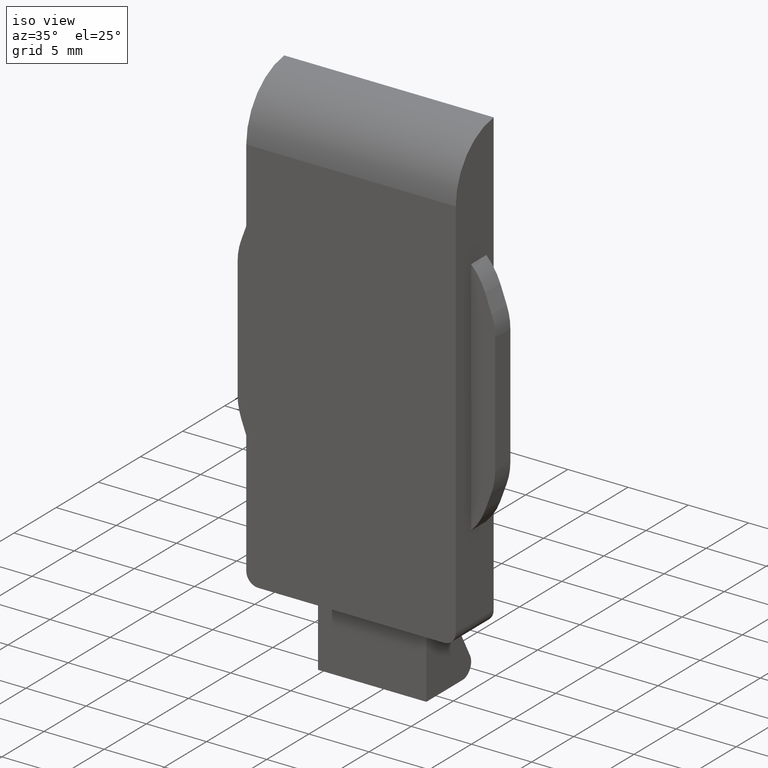
[diagram: clean part render]
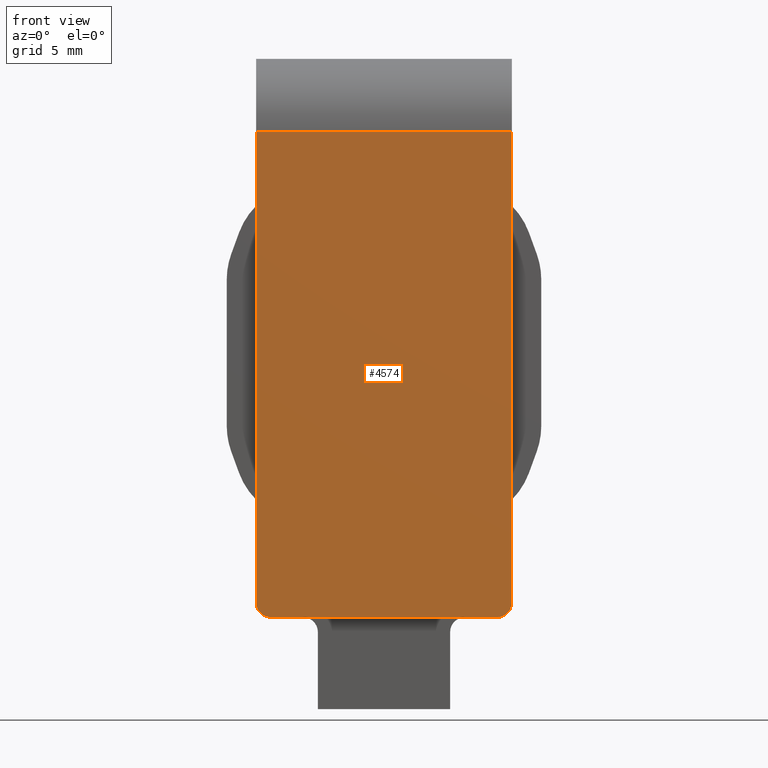
[diagram: tour spotlight — one face highlighted and labeled with its STEP entity id]
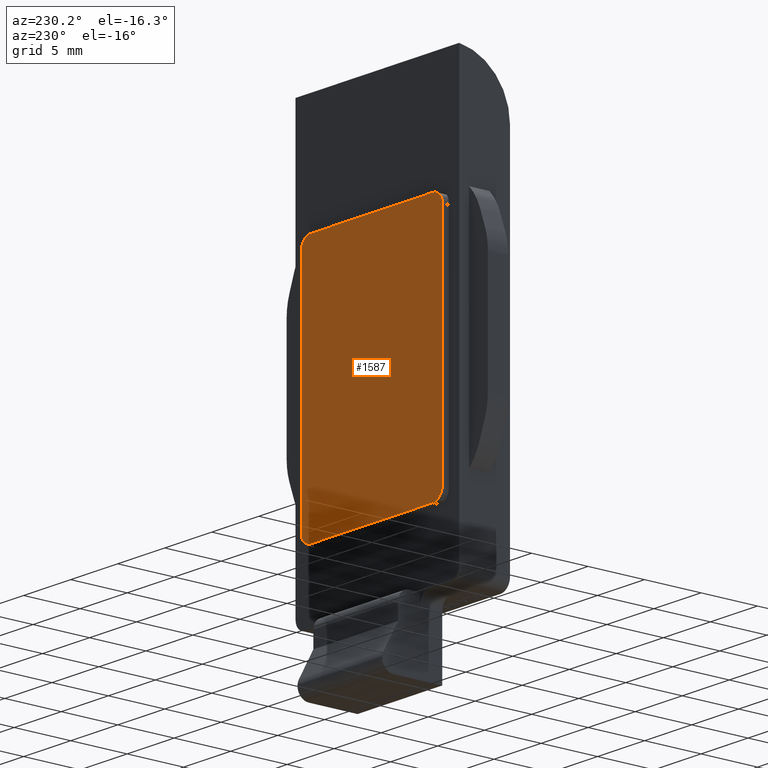
[diagram: tour spotlight — one face highlighted and labeled with its STEP entity id]
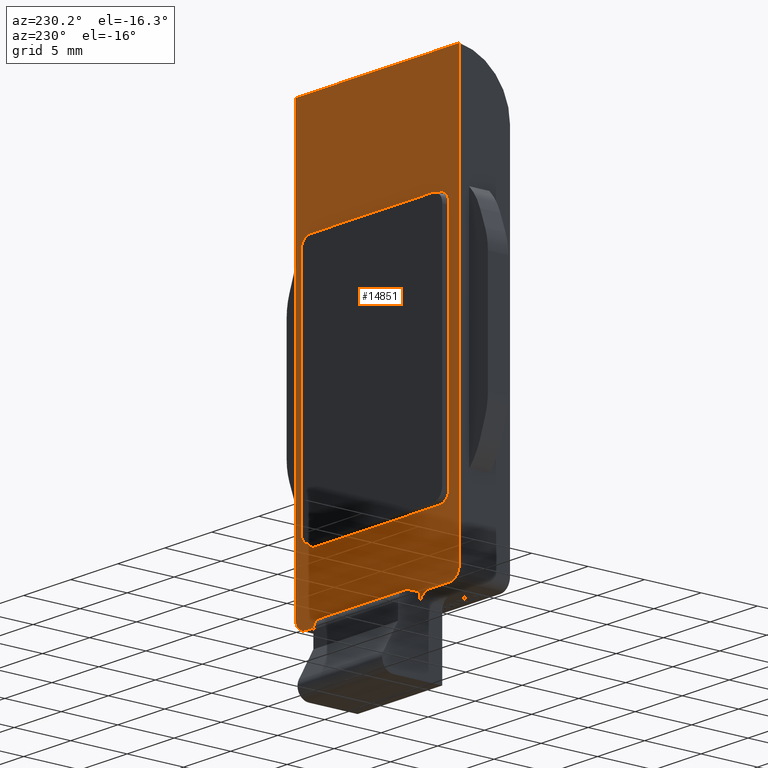
[diagram: tour spotlight — one face highlighted and labeled with its STEP entity id]
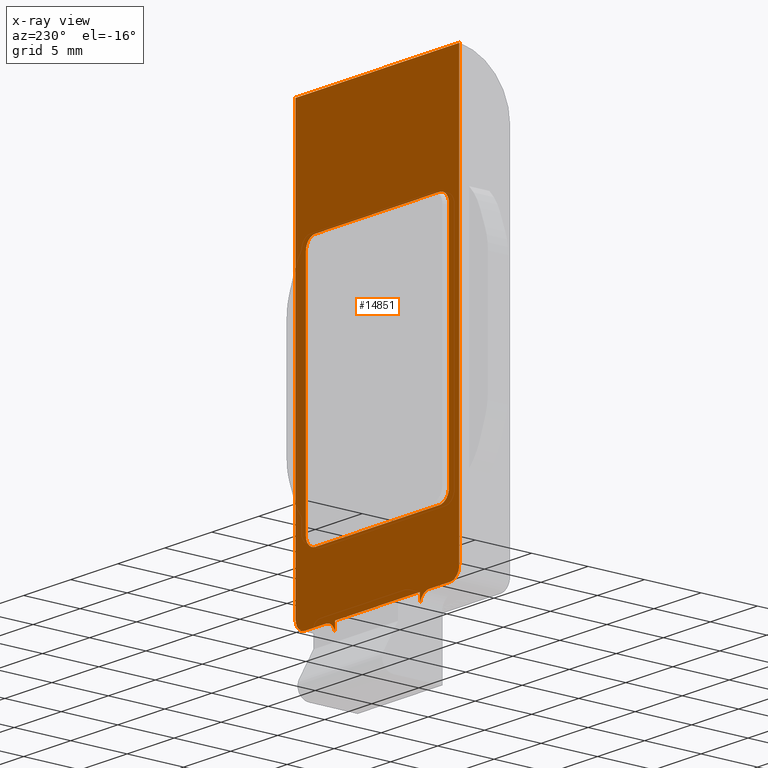
[diagram: x-ray of the same camera — body ghosted, this tour face saturated]
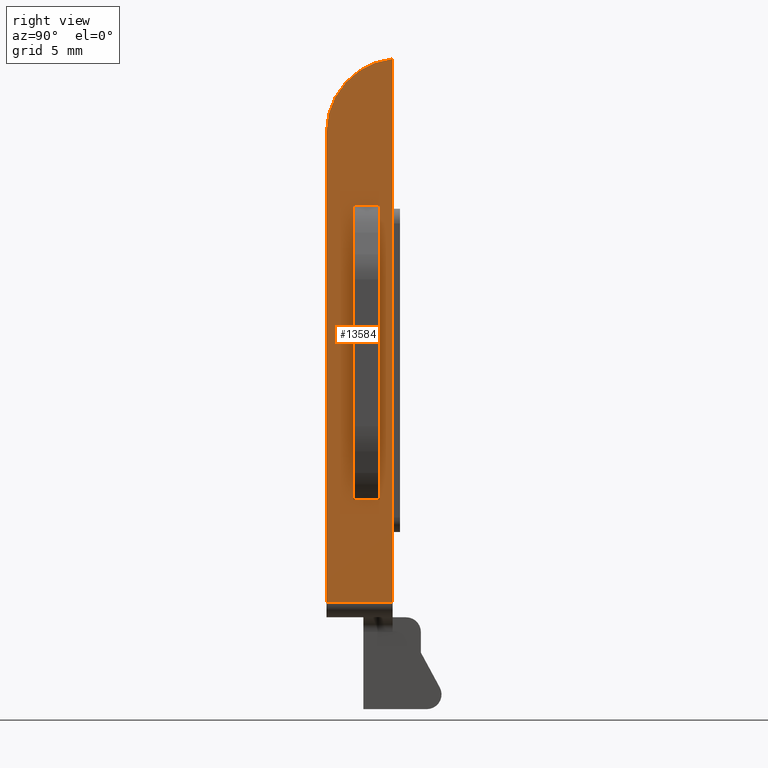
[diagram: tour spotlight — one face highlighted and labeled with its STEP entity id]
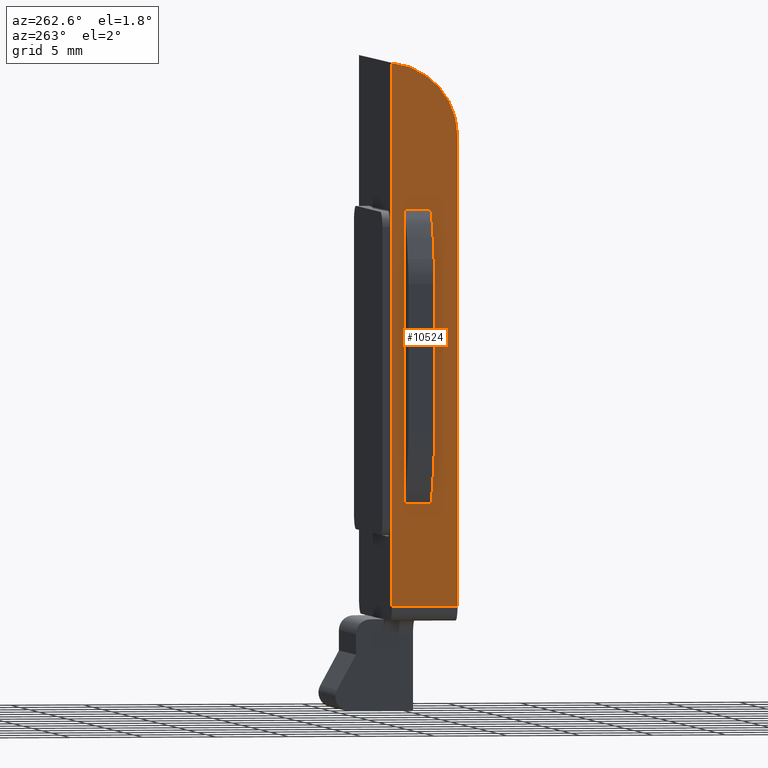
[diagram: tour spotlight — one face highlighted and labeled with its STEP entity id]
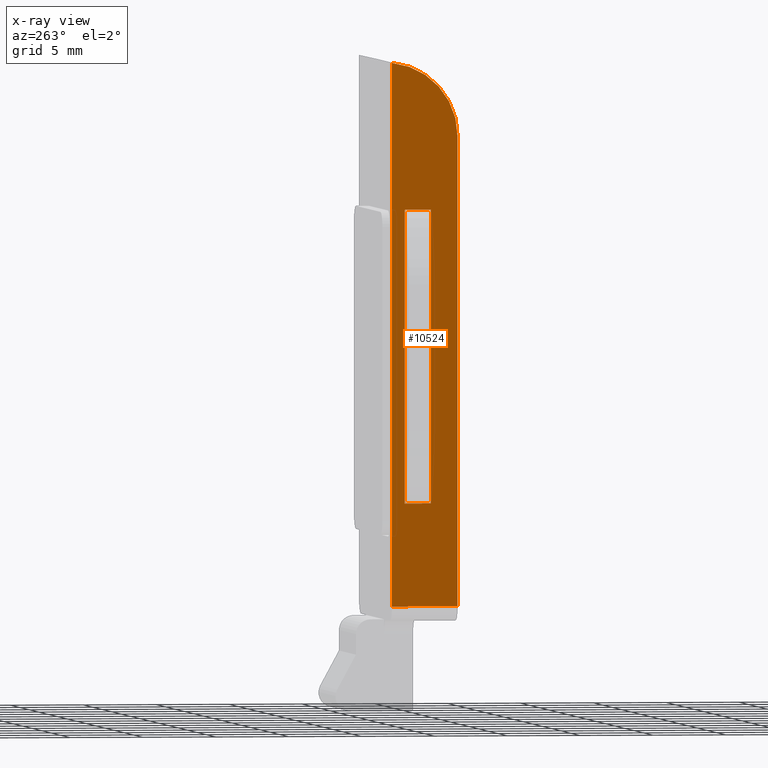
[diagram: x-ray of the same camera — body ghosted, this tour face saturated]
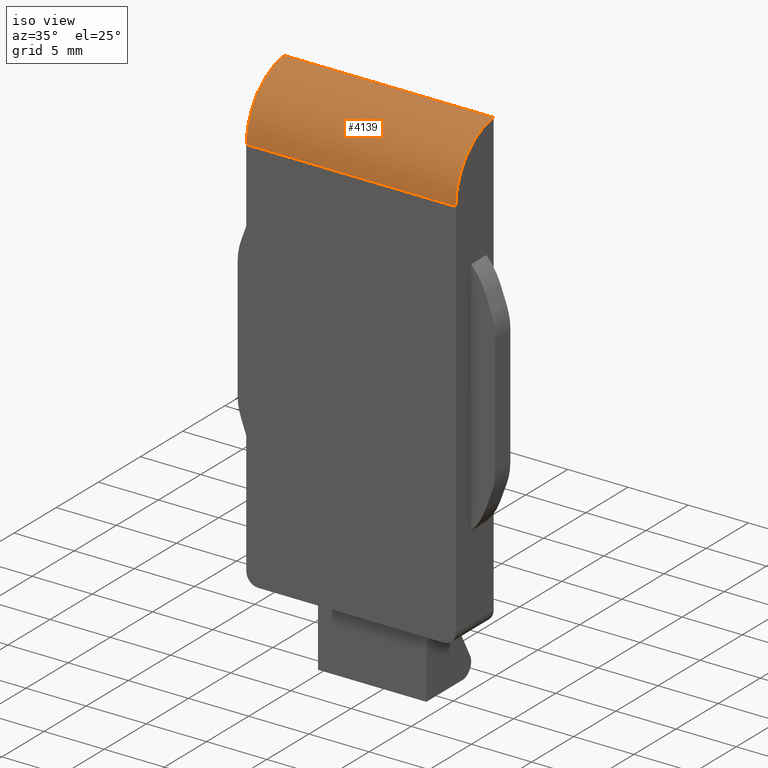
[diagram: tour spotlight — one face highlighted and labeled with its STEP entity id]
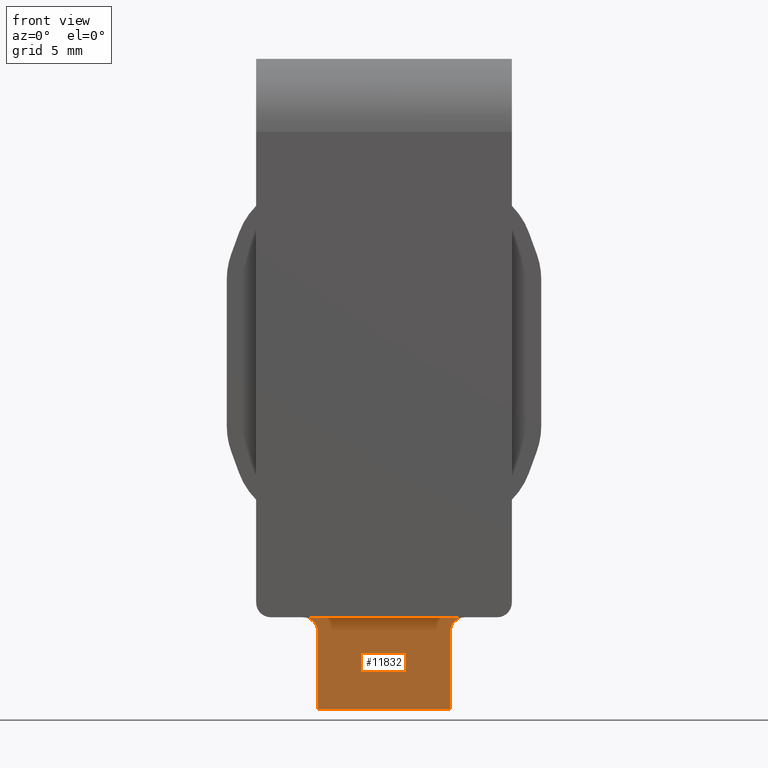
[diagram: tour spotlight — one face highlighted and labeled with its STEP entity id]
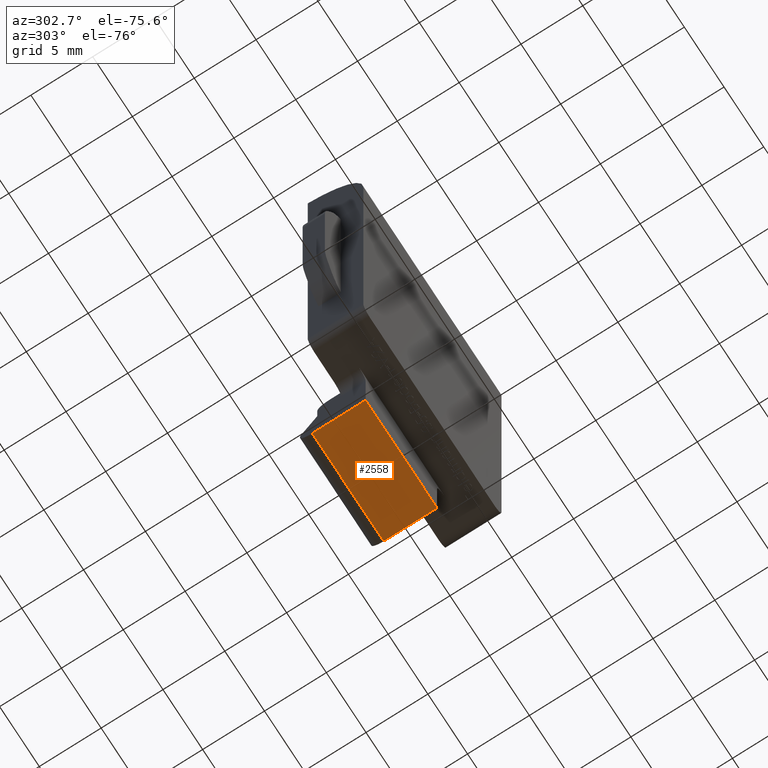
[diagram: tour spotlight — one face highlighted and labeled with its STEP entity id]
A machine part: a face-by-face anatomy tour. The part has 325 B-rep faces; the first image is the clean iso view, then the 8 largest visible faces are spotlighted one at a time (largest first), each with its STEP entity span.

Face 1 — front view, entity #4574. In plain terms, the highlighted planar face has unit normal (0, 1, 0).
Definition (entity closure, byte-faithful):
#469 = CARTESIAN_POINT ( 'NONE',  ( 8.699999999999999289, 0.000000000000000000, 0.000000000000000000 ) ) ;
#782 = CARTESIAN_POINT ( 'NONE',  ( 8.699999999999999289, 0.000000000000000000, 0.000000000000000000 ) ) ;
#944 = EDGE_CURVE ( 'NONE', #11452, #1312, #4113, .T. ) ;
#1054 = VECTOR ( 'NONE', #5608, 1000.000000000000000 ) ;
#1312 = VERTEX_POINT ( 'NONE', #6668 ) ;
#2035 = DIRECTION ( 'NONE',  ( 0.000000000000000000, -1.141265444721583757E-16, 1.000000000000000000 ) ) ;
#2095 = DIRECTION ( 'NONE',  ( -0.000000000000000000, 1.000000000000000000, 1.141265444721583757E-16 ) ) ;
#2259 = VERTEX_POINT ( 'NONE', #14165 ) ;
#2557 = CARTESIAN_POINT ( 'NONE',  ( 8.699999999999999289, 0.000000000000000000, 0.000000000000000000 ) ) ;
#2985 = ORIENTED_EDGE ( 'NONE', *, *, #5309, .T. ) ;
#2991 = VECTOR ( 'NONE', #8082, 1000.000000000000000 ) ;
#3068 = VECTOR ( 'NONE', #11401, 1000.000000000000000 ) ;
#3519 = CARTESIAN_POINT ( 'NONE',  ( 8.699999999999999289, -3.769036299991080429E-15, 33.02506281446689940 ) ) ;
#3775 = CIRCLE ( 'NONE', #15119, 1.000000000000000000 ) ;
#4015 = ORIENTED_EDGE ( 'NONE', *, *, #8146, .F. ) ;
#4113 = CIRCLE ( 'NONE', #11588, 1.000000000000000000 ) ;
#4268 = LINE ( 'NONE', #2557, #3068 ) ;
#4411 = VECTOR ( 'NONE', #10234, 1000.000000000000000 ) ;
#4413 = LINE ( 'NONE', #12801, #1054 ) ;
#4574 = ADVANCED_FACE ( 'NONE', ( #6003 ), #13251, .F. ) ;
#5309 = EDGE_CURVE ( 'NONE', #7398, #13173, #6786, .T. ) ;
#5366 = AXIS2_PLACEMENT_3D ( 'NONE', #782, #2095, #2035 ) ;
#5608 = DIRECTION ( 'NONE',  ( -0.000000000000000000, 1.141265444721583757E-16, -1.000000000000000000 ) ) ;
#5907 = CARTESIAN_POINT ( 'NONE',  ( -8.699999999999999289, -1.141265444721583757E-16, 1.000000000000000000 ) ) ;
#6003 = FACE_OUTER_BOUND ( 'NONE', #14239, .T. ) ;
#6466 = EDGE_CURVE ( 'NONE', #13173, #11452, #4413, .T. ) ;
#6668 = CARTESIAN_POINT ( 'NONE',  ( -7.699999999999998401, 0.000000000000000000, 0.000000000000000000 ) ) ;
#6786 = LINE ( 'NONE', #3519, #4411 ) ;
#6958 = LINE ( 'NONE', #469, #2991 ) ;
#6996 = DIRECTION ( 'NONE',  ( 0.000000000000000000, -1.000000000000000000, -1.141265444721583757E-16 ) ) ;
#7398 = VERTEX_POINT ( 'NONE', #13261 ) ;
#7535 = ORIENTED_EDGE ( 'NONE', *, *, #6466, .T. ) ;
#8082 = DIRECTION ( 'NONE',  ( -1.000000000000000000, -0.000000000000000000, -0.000000000000000000 ) ) ;
#8146 = EDGE_CURVE ( 'NONE', #2259, #1312, #6958, .T. ) ;
#8859 = ORIENTED_EDGE ( 'NONE', *, *, #944, .T. ) ;
#8918 = EDGE_CURVE ( 'NONE', #2259, #14095, #3775, .T. ) ;
#9051 = DIRECTION ( 'NONE',  ( 0.000000000000000000, -1.141265444721583757E-16, 1.000000000000000000 ) ) ;
#9364 = DIRECTION ( 'NONE',  ( 0.000000000000000000, -1.141265444721583757E-16, 1.000000000000000000 ) ) ;
#10234 = DIRECTION ( 'NONE',  ( -1.000000000000000000, 0.000000000000000000, 0.000000000000000000 ) ) ;
#10971 = ORIENTED_EDGE ( 'NONE', *, *, #14042, .F. ) ;
#11401 = DIRECTION ( 'NONE',  ( -0.000000000000000000, 1.141265444721583757E-16, -1.000000000000000000 ) ) ;
#11452 = VERTEX_POINT ( 'NONE', #5907 ) ;
#11543 = CARTESIAN_POINT ( 'NONE',  ( -7.699999999999998401, -1.141265444721583757E-16, 1.000000000000000000 ) ) ;
#11588 = AXIS2_PLACEMENT_3D ( 'NONE', #11543, #12820, #9051 ) ;
#11629 = CARTESIAN_POINT ( 'NONE',  ( 8.699999999999999289, -1.141265444721583757E-16, 1.000000000000000000 ) ) ;
#12801 = CARTESIAN_POINT ( 'NONE',  ( -8.699999999999999289, 0.000000000000000000, 0.000000000000000000 ) ) ;
#12820 = DIRECTION ( 'NONE',  ( 0.000000000000000000, -1.000000000000000000, -1.141265444721583757E-16 ) ) ;
#13173 = VERTEX_POINT ( 'NONE', #15232 ) ;
#13251 = PLANE ( 'NONE',  #5366 ) ;
#13261 = CARTESIAN_POINT ( 'NONE',  ( 8.699999999999999289, -3.469446951953614189E-15, 33.02506281446689940 ) ) ;
#13338 = CARTESIAN_POINT ( 'NONE',  ( 7.699999999999999289, -1.141265444721583757E-16, 1.000000000000000000 ) ) ;
#14042 = EDGE_CURVE ( 'NONE', #7398, #14095, #4268, .T. ) ;
#14095 = VERTEX_POINT ( 'NONE', #11629 ) ;
#14165 = CARTESIAN_POINT ( 'NONE',  ( 7.699999999999999289, 0.000000000000000000, 0.000000000000000000 ) ) ;
#14239 = EDGE_LOOP ( 'NONE', ( #10971, #2985, #7535, #8859, #4015, #16337 ) ) ;
#15119 = AXIS2_PLACEMENT_3D ( 'NONE', #13338, #6996, #9364 ) ;
#15232 = CARTESIAN_POINT ( 'NONE',  ( -8.699999999999999289, -3.469446951953614189E-15, 33.02506281446689940 ) ) ;
#16337 = ORIENTED_EDGE ( 'NONE', *, *, #8918, .T. ) ;

Face 2 — auxiliary view, entity #1587. In plain terms, the highlighted planar face has unit normal (0, 1, 0).
Definition (entity closure, byte-faithful):
#19 = ORIENTED_EDGE ( 'NONE', *, *, #1925, .T. ) ;
#36 = VECTOR ( 'NONE', #11539, 1000.000000000000000 ) ;
#55 = DIRECTION ( 'NONE',  ( 0.000000000000000000, 1.000000000000000000, 0.000000000000000000 ) ) ;
#509 = CIRCLE ( 'NONE', #3511, 1.000000000000000888 ) ;
#870 = VECTOR ( 'NONE', #15500, 1000.000000000000000 ) ;
#914 = EDGE_LOOP ( 'NONE', ( #4804, #19, #12055, #7626, #9732, #7924, #1076, #14065 ) ) ;
#1076 = ORIENTED_EDGE ( 'NONE', *, *, #9006, .T. ) ;
#1279 = AXIS2_PLACEMENT_3D ( 'NONE', #5030, #6462, #1282 ) ;
#1282 = DIRECTION ( 'NONE',  ( 0.000000000000000000, 0.000000000000000000, 1.000000000000000000 ) ) ;
#1587 = ADVANCED_FACE ( 'NONE', ( #2112 ), #13980, .T. ) ;
#1639 = AXIS2_PLACEMENT_3D ( 'NONE', #3992, #2713, #5265 ) ;
#1653 = CARTESIAN_POINT ( 'NONE',  ( -6.499999999999997335, 1.000000000000000000, 11.00000000000000533 ) ) ;
#1925 = EDGE_CURVE ( 'NONE', #8725, #6084, #9420, .T. ) ;
#2112 = FACE_OUTER_BOUND ( 'NONE', #914, .T. ) ;
#2213 = CARTESIAN_POINT ( 'NONE',  ( 6.499999999999998224, 1.000000000000000000, -10.99999999999999467 ) ) ;
#2349 = CARTESIAN_POINT ( 'NONE',  ( 6.500000000000001776, 1.000000000000000000, -9.999999999999994671 ) ) ;
#2713 = DIRECTION ( 'NONE',  ( 0.000000000000000000, 1.000000000000000000, 0.000000000000000000 ) ) ;
#3511 = AXIS2_PLACEMENT_3D ( 'NONE', #2349, #13875, #10133 ) ;
#3764 = CARTESIAN_POINT ( 'NONE',  ( -6.499999999999997335, 1.000000000000000000, 10.00000000000000533 ) ) ;
#3816 = LINE ( 'NONE', #11577, #870 ) ;
#3954 = EDGE_CURVE ( 'NONE', #6084, #14330, #5421, .T. ) ;
#3973 = DIRECTION ( 'NONE',  ( 1.000000000000000000, 0.000000000000000000, 0.000000000000000000 ) ) ;
#3992 = CARTESIAN_POINT ( 'NONE',  ( 0.000000000000000000, 1.000000000000000000, 0.000000000000000000 ) ) ;
#4367 = LINE ( 'NONE', #10072, #10285 ) ;
#4804 = ORIENTED_EDGE ( 'NONE', *, *, #5088, .T. ) ;
#4984 = DIRECTION ( 'NONE',  ( -1.000000000000000000, -0.000000000000000000, -0.000000000000000000 ) ) ;
#5030 = CARTESIAN_POINT ( 'NONE',  ( 6.500000000000004441, 1.000000000000000000, 10.00000000000000355 ) ) ;
#5088 = EDGE_CURVE ( 'NONE', #5220, #8725, #3816, .T. ) ;
#5148 = DIRECTION ( 'NONE',  ( 0.000000000000000000, 1.000000000000000000, 0.000000000000000000 ) ) ;
#5220 = VERTEX_POINT ( 'NONE', #14673 ) ;
#5265 = DIRECTION ( 'NONE',  ( 0.000000000000000000, -0.000000000000000000, 1.000000000000000000 ) ) ;
#5415 = CARTESIAN_POINT ( 'NONE',  ( -7.499999999999997335, 1.000000000000000000, 11.00000000000000533 ) ) ;
#5421 = LINE ( 'NONE', #5415, #11344 ) ;
#5707 = VERTEX_POINT ( 'NONE', #14929 ) ;
#5798 = VERTEX_POINT ( 'NONE', #2213 ) ;
#5913 = VERTEX_POINT ( 'NONE', #13904 ) ;
#5943 = EDGE_CURVE ( 'NONE', #5707, #11967, #9938, .T. ) ;
#6084 = VERTEX_POINT ( 'NONE', #1653 ) ;
#6462 = DIRECTION ( 'NONE',  ( 0.000000000000000000, 1.000000000000000000, 0.000000000000000000 ) ) ;
#6726 = AXIS2_PLACEMENT_3D ( 'NONE', #3764, #55, #8885 ) ;
#7474 = CARTESIAN_POINT ( 'NONE',  ( 7.500000000000000888, 1.000000000000000000, -10.99999999999999467 ) ) ;
#7626 = ORIENTED_EDGE ( 'NONE', *, *, #12118, .T. ) ;
#7924 = ORIENTED_EDGE ( 'NONE', *, *, #14016, .T. ) ;
#8725 = VERTEX_POINT ( 'NONE', #10880 ) ;
#8885 = DIRECTION ( 'NONE',  ( 0.000000000000000000, 0.000000000000000000, 1.000000000000000000 ) ) ;
#9006 = EDGE_CURVE ( 'NONE', #5798, #5913, #4367, .T. ) ;
#9044 = CIRCLE ( 'NONE', #1279, 0.9999999999999991118 ) ;
#9420 = CIRCLE ( 'NONE', #6726, 1.000000000000000888 ) ;
#9732 = ORIENTED_EDGE ( 'NONE', *, *, #5943, .T. ) ;
#9938 = LINE ( 'NONE', #7474, #36 ) ;
#10072 = CARTESIAN_POINT ( 'NONE',  ( -7.500000000000000888, 1.000000000000000000, -10.99999999999999467 ) ) ;
#10133 = DIRECTION ( 'NONE',  ( 0.000000000000000000, 0.000000000000000000, 1.000000000000000000 ) ) ;
#10285 = VECTOR ( 'NONE', #4984, 1000.000000000000000 ) ;
#10880 = CARTESIAN_POINT ( 'NONE',  ( -7.499999999999997335, 1.000000000000000000, 10.00000000000000355 ) ) ;
#11344 = VECTOR ( 'NONE', #3973, 1000.000000000000000 ) ;
#11539 = DIRECTION ( 'NONE',  ( -1.577021341797097560E-16, -0.000000000000000000, -1.000000000000000000 ) ) ;
#11577 = CARTESIAN_POINT ( 'NONE',  ( -7.500000000000000888, 1.000000000000000000, -10.99999999999999467 ) ) ;
#11788 = AXIS2_PLACEMENT_3D ( 'NONE', #12725, #5148, #15375 ) ;
#11967 = VERTEX_POINT ( 'NONE', #13541 ) ;
#12055 = ORIENTED_EDGE ( 'NONE', *, *, #3954, .T. ) ;
#12118 = EDGE_CURVE ( 'NONE', #14330, #5707, #9044, .T. ) ;
#12725 = CARTESIAN_POINT ( 'NONE',  ( -6.500000000000000888, 1.000000000000000000, -9.999999999999994671 ) ) ;
#13541 = CARTESIAN_POINT ( 'NONE',  ( 7.500000000000000888, 1.000000000000000000, -9.999999999999994671 ) ) ;
#13759 = CARTESIAN_POINT ( 'NONE',  ( 6.500000000000001776, 1.000000000000000000, 11.00000000000000533 ) ) ;
#13875 = DIRECTION ( 'NONE',  ( 0.000000000000000000, 1.000000000000000000, 0.000000000000000000 ) ) ;
#13904 = CARTESIAN_POINT ( 'NONE',  ( -6.500000000000000888, 1.000000000000000000, -10.99999999999999467 ) ) ;
#13980 = PLANE ( 'NONE',  #1639 ) ;
#14016 = EDGE_CURVE ( 'NONE', #11967, #5798, #509, .T. ) ;
#14065 = ORIENTED_EDGE ( 'NONE', *, *, #15622, .T. ) ;
#14330 = VERTEX_POINT ( 'NONE', #13759 ) ;
#14673 = CARTESIAN_POINT ( 'NONE',  ( -7.500000000000000888, 1.000000000000000000, -9.999999999999994671 ) ) ;
#14708 = CIRCLE ( 'NONE', #11788, 1.000000000000000888 ) ;
#14929 = CARTESIAN_POINT ( 'NONE',  ( 7.500000000000004441, 1.000000000000000000, 10.00000000000000355 ) ) ;
#15375 = DIRECTION ( 'NONE',  ( 0.000000000000000000, 0.000000000000000000, 1.000000000000000000 ) ) ;
#15500 = DIRECTION ( 'NONE',  ( 1.577021341797097560E-16, 0.000000000000000000, 1.000000000000000000 ) ) ;
#15622 = EDGE_CURVE ( 'NONE', #5913, #5220, #14708, .T. ) ;

Face 3 — auxiliary view, entity #14851. An x-ray twin of the same camera follows (body ghosted, this face saturated) — the face is partly hidden behind the body. In plain terms, the highlighted planar face has unit normal (0, -1, -0).
Definition (entity closure, byte-faithful):
#56 = VECTOR ( 'NONE', #11727, 1000.000000000000000 ) ;
#422 = ORIENTED_EDGE ( 'NONE', *, *, #10702, .T. ) ;
#535 = VERTEX_POINT ( 'NONE', #7833 ) ;
#600 = VECTOR ( 'NONE', #4593, 1000.000000000000000 ) ;
#971 = LINE ( 'NONE', #8139, #12811 ) ;
#983 = VERTEX_POINT ( 'NONE', #10764 ) ;
#1150 = CARTESIAN_POINT ( 'NONE',  ( -4.500000000000000888, 4.500000000000000000, -2.455557449790782762E-31 ) ) ;
#1242 = CIRCLE ( 'NONE', #2507, 1.000000000000000000 ) ;
#1497 = DIRECTION ( 'NONE',  ( 0.000000000000000000, 0.000000000000000000, -1.000000000000000000 ) ) ;
#1676 = FACE_OUTER_BOUND ( 'NONE', #8193, .T. ) ;
#1748 = CARTESIAN_POINT ( 'NONE',  ( 7.600000000000005862, 4.499999999999995559, 26.89999999999999858 ) ) ;
#1805 = CARTESIAN_POINT ( 'NONE',  ( 7.600000000000000533, 4.499999999999999112, 6.700000000000001066 ) ) ;
#1881 = CARTESIAN_POINT ( 'NONE',  ( 5.500000000000000000, 4.500000000000000000, -1.000000000000000000 ) ) ;
#1887 = ORIENTED_EDGE ( 'NONE', *, *, #7018, .T. ) ;
#1941 = VERTEX_POINT ( 'NONE', #14084 ) ;
#1981 = LINE ( 'NONE', #13297, #3759 ) ;
#2028 = VECTOR ( 'NONE', #6521, 1000.000000000000000 ) ;
#2040 = DIRECTION ( 'NONE',  ( 0.000000000000000000, 0.000000000000000000, -1.000000000000000000 ) ) ;
#2072 = VERTEX_POINT ( 'NONE', #9230 ) ;
#2090 = ORIENTED_EDGE ( 'NONE', *, *, #7242, .T. ) ;
#2101 = EDGE_CURVE ( 'NONE', #8346, #8969, #13367, .T. ) ;
#2138 = DIRECTION ( 'NONE',  ( 1.860270795296047257E-32, 1.141265444721583757E-16, -1.000000000000000000 ) ) ;
#2151 = DIRECTION ( 'NONE',  ( 0.000000000000000000, 1.141265444721583757E-16, -1.000000000000000000 ) ) ;
#2175 = LINE ( 'NONE', #1150, #14241 ) ;
#2236 = LINE ( 'NONE', #12127, #5992 ) ;
#2239 = VERTEX_POINT ( 'NONE', #3532 ) ;
#2377 = CARTESIAN_POINT ( 'NONE',  ( -6.599999999999997868, 4.499999999999995559, 27.90000000000000213 ) ) ;
#2507 = AXIS2_PLACEMENT_3D ( 'NONE', #5527, #2822, #6807 ) ;
#2546 = ORIENTED_EDGE ( 'NONE', *, *, #14662, .T. ) ;
#2582 = VERTEX_POINT ( 'NONE', #2377 ) ;
#2756 = CARTESIAN_POINT ( 'NONE',  ( -6.599999999999999645, 4.499999999999999112, 5.700000000000002842 ) ) ;
#2772 = CIRCLE ( 'NONE', #13632, 1.000000000000000888 ) ;
#2822 = DIRECTION ( 'NONE',  ( 0.000000000000000000, -1.000000000000000000, -1.141265444721583757E-16 ) ) ;
#3044 = AXIS2_PLACEMENT_3D ( 'NONE', #14774, #7274, #16040 ) ;
#3137 = CARTESIAN_POINT ( 'NONE',  ( -7.699999999999998401, 4.500000000000000000, 0.000000000000000000 ) ) ;
#3149 = VECTOR ( 'NONE', #14071, 1000.000000000000000 ) ;
#3298 = CIRCLE ( 'NONE', #6341, 1.000000000000000000 ) ;
#3426 = LINE ( 'NONE', #11840, #56 ) ;
#3532 = CARTESIAN_POINT ( 'NONE',  ( -5.500000000000001776, 4.500000000000000000, 0.000000000000000000 ) ) ;
#3544 = EDGE_CURVE ( 'NONE', #15952, #8969, #12164, .T. ) ;
#3759 = VECTOR ( 'NONE', #15786, 1000.000000000000000 ) ;
#3783 = DIRECTION ( 'NONE',  ( 0.000000000000000000, 0.000000000000000000, -1.000000000000000000 ) ) ;
#3842 = CIRCLE ( 'NONE', #9436, 1.000000000000000000 ) ;
#3895 = CARTESIAN_POINT ( 'NONE',  ( 6.600000000000005862, 4.499999999999997335, 26.89999999999999858 ) ) ;
#3902 = VERTEX_POINT ( 'NONE', #10387 ) ;
#3984 = VERTEX_POINT ( 'NONE', #4425 ) ;
#4012 = ORIENTED_EDGE ( 'NONE', *, *, #2101, .T. ) ;
#4116 = EDGE_CURVE ( 'NONE', #15099, #7486, #5227, .T. ) ;
#4193 = CARTESIAN_POINT ( 'NONE',  ( -6.599999999999997868, 4.499999999999997335, 26.89999999999999858 ) ) ;
#4331 = ORIENTED_EDGE ( 'NONE', *, *, #5459, .F. ) ;
#4350 = EDGE_CURVE ( 'NONE', #2239, #7656, #8959, .T. ) ;
#4425 = CARTESIAN_POINT ( 'NONE',  ( 8.699999999999999289, 4.500000000000000000, 1.000000000000000000 ) ) ;
#4593 = DIRECTION ( 'NONE',  ( 0.000000000000000000, 1.562813942321448017E-16, -1.000000000000000000 ) ) ;
#4776 = LINE ( 'NONE', #12278, #11482 ) ;
#4889 = AXIS2_PLACEMENT_3D ( 'NONE', #14145, #15416, #1497 ) ;
#5026 = DIRECTION ( 'NONE',  ( -0.000000000000000000, 1.000000000000000000, 1.141265444721583757E-16 ) ) ;
#5218 = DIRECTION ( 'NONE',  ( 0.000000000000000000, -1.000000000000000000, -1.141265444721583757E-16 ) ) ;
#5227 = CIRCLE ( 'NONE', #10322, 1.000000000000000888 ) ;
#5459 = EDGE_CURVE ( 'NONE', #9221, #1941, #3426, .T. ) ;
#5527 = CARTESIAN_POINT ( 'NONE',  ( -5.500000000000000888, 4.500000000000000000, -1.000000000000000000 ) ) ;
#5531 = VERTEX_POINT ( 'NONE', #9244 ) ;
#5889 = CARTESIAN_POINT ( 'NONE',  ( -7.599999999999998757, 4.499999999999999112, 5.700000000000002842 ) ) ;
#5992 = VECTOR ( 'NONE', #10962, 1000.000000000000000 ) ;
#6180 = ORIENTED_EDGE ( 'NONE', *, *, #9919, .T. ) ;
#6341 = AXIS2_PLACEMENT_3D ( 'NONE', #14022, #5026, #12818 ) ;
#6381 = ORIENTED_EDGE ( 'NONE', *, *, #10033, .F. ) ;
#6426 = ORIENTED_EDGE ( 'NONE', *, *, #7333, .T. ) ;
#6464 = CARTESIAN_POINT ( 'NONE',  ( -4.500000000000000000, 4.500000000000000000, 0.000000000000000000 ) ) ;
#6511 = ORIENTED_EDGE ( 'NONE', *, *, #6563, .T. ) ;
#6521 = DIRECTION ( 'NONE',  ( 2.344220913482172149E-16, -1.562813942321448017E-16, 1.000000000000000000 ) ) ;
#6563 = EDGE_CURVE ( 'NONE', #7486, #2582, #2236, .T. ) ;
#6807 = DIRECTION ( 'NONE',  ( 0.000000000000000000, 0.000000000000000000, -1.000000000000000000 ) ) ;
#6811 = ORIENTED_EDGE ( 'NONE', *, *, #15003, .T. ) ;
#7018 = EDGE_CURVE ( 'NONE', #7656, #2072, #13299, .T. ) ;
#7143 = DIRECTION ( 'NONE',  ( 0.000000000000000000, -1.000000000000000000, -1.141265444721583757E-16 ) ) ;
#7157 = ORIENTED_EDGE ( 'NONE', *, *, #8244, .T. ) ;
#7242 = EDGE_CURVE ( 'NONE', #12619, #15099, #10129, .T. ) ;
#7274 = DIRECTION ( 'NONE',  ( -0.000000000000000000, 1.000000000000000000, 1.141265444721583757E-16 ) ) ;
#7333 = EDGE_CURVE ( 'NONE', #535, #2239, #1242, .T. ) ;
#7486 = VERTEX_POINT ( 'NONE', #12215 ) ;
#7572 = AXIS2_PLACEMENT_3D ( 'NONE', #1881, #7143, #2040 ) ;
#7656 = VERTEX_POINT ( 'NONE', #3137 ) ;
#7763 = DIRECTION ( 'NONE',  ( 0.000000000000000000, -1.000000000000000000, -1.141265444721583757E-16 ) ) ;
#7833 = CARTESIAN_POINT ( 'NONE',  ( -4.500000000000000000, 4.500000000000000000, -1.000000000000000000 ) ) ;
#7991 = DIRECTION ( 'NONE',  ( 0.000000000000000000, -1.000000000000000000, -1.141265444721583757E-16 ) ) ;
#7994 = ORIENTED_EDGE ( 'NONE', *, *, #13186, .T. ) ;
#8013 = ORIENTED_EDGE ( 'NONE', *, *, #10953, .F. ) ;
#8139 = CARTESIAN_POINT ( 'NONE',  ( 8.699999999999999289, 4.500000000000000000, 0.000000000000000000 ) ) ;
#8164 = DIRECTION ( 'NONE',  ( 0.000000000000000000, 0.000000000000000000, -1.000000000000000000 ) ) ;
#8177 = CARTESIAN_POINT ( 'NONE',  ( 6.599999999999997868, 4.499999999999999112, 5.700000000000001066 ) ) ;
#8193 = EDGE_LOOP ( 'NONE', ( #11133, #1887, #6180, #4331, #8013, #7994, #16189, #4012, #12554, #7157, #6381, #6426 ) ) ;
#8244 = EDGE_CURVE ( 'NONE', #15952, #8381, #4776, .T. ) ;
#8346 = VERTEX_POINT ( 'NONE', #16257 ) ;
#8381 = VERTEX_POINT ( 'NONE', #6464 ) ;
#8449 = DIRECTION ( 'NONE',  ( 0.000000000000000000, -1.000000000000000000, -1.141265444721583757E-16 ) ) ;
#8670 = LINE ( 'NONE', #12471, #3149 ) ;
#8959 = LINE ( 'NONE', #13235, #13315 ) ;
#8969 = VERTEX_POINT ( 'NONE', #9912 ) ;
#9221 = VERTEX_POINT ( 'NONE', #11619 ) ;
#9230 = CARTESIAN_POINT ( 'NONE',  ( -8.699999999999999289, 4.500000000000000000, 1.000000000000000000 ) ) ;
#9244 = CARTESIAN_POINT ( 'NONE',  ( -7.599999999999998757, 4.499999999999999112, 6.700000000000004619 ) ) ;
#9386 = VECTOR ( 'NONE', #2138, 1000.000000000000000 ) ;
#9436 = AXIS2_PLACEMENT_3D ( 'NONE', #12804, #7763, #14057 ) ;
#9467 = DIRECTION ( 'NONE',  ( -1.000000000000000000, -0.000000000000000000, -0.000000000000000000 ) ) ;
#9576 = VECTOR ( 'NONE', #14730, 1000.000000000000000 ) ;
#9717 = CARTESIAN_POINT ( 'NONE',  ( 4.500000000000000000, 4.499999999999999112, 6.779035550246952369 ) ) ;
#9752 = DIRECTION ( 'NONE',  ( -1.000000000000000000, -0.000000000000000000, -0.000000000000000000 ) ) ;
#9828 = EDGE_CURVE ( 'NONE', #2582, #983, #2772, .T. ) ;
#9912 = CARTESIAN_POINT ( 'NONE',  ( 4.500000000000000000, 4.500000000000000000, -1.000000000000000000 ) ) ;
#9919 = EDGE_CURVE ( 'NONE', #2072, #1941, #1981, .T. ) ;
#9981 = DIRECTION ( 'NONE',  ( -1.860270795296047804E-32, -1.141265444721583757E-16, 1.000000000000000000 ) ) ;
#10033 = EDGE_CURVE ( 'NONE', #535, #8381, #2175, .T. ) ;
#10129 = LINE ( 'NONE', #14093, #2028 ) ;
#10322 = AXIS2_PLACEMENT_3D ( 'NONE', #3895, #5218, #3783 ) ;
#10387 = CARTESIAN_POINT ( 'NONE',  ( 7.699999999999999289, 4.500000000000000000, 0.000000000000000000 ) ) ;
#10587 = DIRECTION ( 'NONE',  ( -1.000000000000000000, 0.000000000000000000, 0.000000000000000000 ) ) ;
#10702 = EDGE_CURVE ( 'NONE', #983, #5531, #11657, .T. ) ;
#10764 = CARTESIAN_POINT ( 'NONE',  ( -7.599999999999998757, 4.499999999999995559, 26.89999999999999858 ) ) ;
#10781 = CARTESIAN_POINT ( 'NONE',  ( 4.500000000000000000, 4.500000000000000000, 0.000000000000000000 ) ) ;
#10953 = EDGE_CURVE ( 'NONE', #3984, #9221, #8670, .T. ) ;
#10962 = DIRECTION ( 'NONE',  ( -1.000000000000000000, 0.000000000000000000, 2.282530889443166529E-16 ) ) ;
#11133 = ORIENTED_EDGE ( 'NONE', *, *, #4350, .T. ) ;
#11482 = VECTOR ( 'NONE', #9752, 1000.000000000000000 ) ;
#11619 = CARTESIAN_POINT ( 'NONE',  ( 8.699999999999999289, 4.499999999999995559, 38.00000000000000000 ) ) ;
#11657 = LINE ( 'NONE', #12214, #600 ) ;
#11727 = DIRECTION ( 'NONE',  ( -1.000000000000000000, -0.000000000000000000, -0.000000000000000000 ) ) ;
#11840 = CARTESIAN_POINT ( 'NONE',  ( 8.699999999999999289, 4.499999999999995559, 38.00000000000000000 ) ) ;
#11868 = EDGE_CURVE ( 'NONE', #3902, #8346, #971, .T. ) ;
#12127 = CARTESIAN_POINT ( 'NONE',  ( 7.600000000000005862, 4.499999999999995559, 27.89999999999999858 ) ) ;
#12164 = LINE ( 'NONE', #9717, #9386 ) ;
#12214 = CARTESIAN_POINT ( 'NONE',  ( -7.599999999999998757, 4.499999999999995559, 27.90000000000000213 ) ) ;
#12215 = CARTESIAN_POINT ( 'NONE',  ( 6.600000000000005862, 4.499999999999995559, 27.89999999999999858 ) ) ;
#12278 = CARTESIAN_POINT ( 'NONE',  ( 8.699999999999999289, 4.500000000000000000, 0.000000000000000000 ) ) ;
#12292 = VERTEX_POINT ( 'NONE', #8177 ) ;
#12471 = CARTESIAN_POINT ( 'NONE',  ( 8.699999999999999289, 4.500000000000000000, 0.000000000000000000 ) ) ;
#12554 = ORIENTED_EDGE ( 'NONE', *, *, #3544, .F. ) ;
#12619 = VERTEX_POINT ( 'NONE', #1805 ) ;
#12804 = CARTESIAN_POINT ( 'NONE',  ( 6.600000000000001421, 4.499999999999999112, 6.700000000000001066 ) ) ;
#12811 = VECTOR ( 'NONE', #9467, 1000.000000000000000 ) ;
#12818 = DIRECTION ( 'NONE',  ( 0.000000000000000000, 0.000000000000000000, -1.000000000000000000 ) ) ;
#13135 = LINE ( 'NONE', #5889, #9576 ) ;
#13186 = EDGE_CURVE ( 'NONE', #3984, #3902, #3298, .T. ) ;
#13235 = CARTESIAN_POINT ( 'NONE',  ( 8.699999999999999289, 4.500000000000000000, 0.000000000000000000 ) ) ;
#13297 = CARTESIAN_POINT ( 'NONE',  ( -8.699999999999999289, 4.500000000000000000, 0.000000000000000000 ) ) ;
#13299 = CIRCLE ( 'NONE', #3044, 1.000000000000000000 ) ;
#13311 = VERTEX_POINT ( 'NONE', #2756 ) ;
#13315 = VECTOR ( 'NONE', #10587, 1000.000000000000000 ) ;
#13367 = CIRCLE ( 'NONE', #7572, 1.000000000000000000 ) ;
#13632 = AXIS2_PLACEMENT_3D ( 'NONE', #4193, #7991, #8164 ) ;
#13868 = AXIS2_PLACEMENT_3D ( 'NONE', #14640, #8449, #2151 ) ;
#14022 = CARTESIAN_POINT ( 'NONE',  ( 7.699999999999999289, 4.500000000000000000, 1.000000000000000000 ) ) ;
#14057 = DIRECTION ( 'NONE',  ( 0.000000000000000000, 0.000000000000000000, -1.000000000000000000 ) ) ;
#14071 = DIRECTION ( 'NONE',  ( 0.000000000000000000, -1.141265444721583757E-16, 1.000000000000000000 ) ) ;
#14084 = CARTESIAN_POINT ( 'NONE',  ( -8.699999999999999289, 4.499999999999995559, 38.00000000000000000 ) ) ;
#14093 = CARTESIAN_POINT ( 'NONE',  ( 7.600000000000000533, 4.499999999999999112, 5.700000000000001066 ) ) ;
#14145 = CARTESIAN_POINT ( 'NONE',  ( -6.599999999999998757, 4.499999999999999112, 6.700000000000004619 ) ) ;
#14191 = ORIENTED_EDGE ( 'NONE', *, *, #15352, .T. ) ;
#14241 = VECTOR ( 'NONE', #9981, 1000.000000000000000 ) ;
#14530 = FACE_BOUND ( 'NONE', #15005, .T. ) ;
#14640 = CARTESIAN_POINT ( 'NONE',  ( 8.699999999999999289, 4.500000000000000000, 0.000000000000000000 ) ) ;
#14650 = ORIENTED_EDGE ( 'NONE', *, *, #4116, .T. ) ;
#14662 = EDGE_CURVE ( 'NONE', #5531, #13311, #15516, .T. ) ;
#14730 = DIRECTION ( 'NONE',  ( 1.000000000000000000, 0.000000000000000000, -1.141265444721583757E-16 ) ) ;
#14774 = CARTESIAN_POINT ( 'NONE',  ( -7.699999999999998401, 4.500000000000000000, 1.000000000000000000 ) ) ;
#14801 = PLANE ( 'NONE',  #13868 ) ;
#14851 = ADVANCED_FACE ( 'NONE', ( #1676, #14530 ), #14801, .F. ) ;
#15003 = EDGE_CURVE ( 'NONE', #12292, #12619, #3842, .T. ) ;
#15005 = EDGE_LOOP ( 'NONE', ( #14191, #6811, #2090, #14650, #6511, #15742, #422, #2546 ) ) ;
#15099 = VERTEX_POINT ( 'NONE', #1748 ) ;
#15352 = EDGE_CURVE ( 'NONE', #13311, #12292, #13135, .T. ) ;
#15416 = DIRECTION ( 'NONE',  ( 0.000000000000000000, -1.000000000000000000, -1.141265444721583757E-16 ) ) ;
#15516 = CIRCLE ( 'NONE', #4889, 1.000000000000000000 ) ;
#15742 = ORIENTED_EDGE ( 'NONE', *, *, #9828, .T. ) ;
#15786 = DIRECTION ( 'NONE',  ( 0.000000000000000000, -1.141265444721583757E-16, 1.000000000000000000 ) ) ;
#15952 = VERTEX_POINT ( 'NONE', #10781 ) ;
#16040 = DIRECTION ( 'NONE',  ( 0.000000000000000000, 0.000000000000000000, -1.000000000000000000 ) ) ;
#16189 = ORIENTED_EDGE ( 'NONE', *, *, #11868, .T. ) ;
#16257 = CARTESIAN_POINT ( 'NONE',  ( 5.500000000000000000, 4.500000000000000000, 0.000000000000000000 ) ) ;

Face 4 — right view, entity #13584. In plain terms, the highlighted planar face has unit normal (-1, 0, 0).
Definition (entity closure, byte-faithful):
#267 = DIRECTION ( 'NONE',  ( -1.000000000000000000, 0.000000000000000000, 0.000000000000000000 ) ) ;
#450 = CARTESIAN_POINT ( 'NONE',  ( 8.699999999999999289, 3.625000000000000444, 8.000000000000000000 ) ) ;
#599 = CARTESIAN_POINT ( 'NONE',  ( 8.699999999999999289, 1.824999999999997957, 28.00000000000000000 ) ) ;
#739 = LINE ( 'NONE', #11764, #8629 ) ;
#810 = CARTESIAN_POINT ( 'NONE',  ( 8.699999999999999289, 1.824999999999997957, 28.00000000000000000 ) ) ;
#853 = EDGE_CURVE ( 'NONE', #7402, #2884, #11013, .T. ) ;
#1071 = VECTOR ( 'NONE', #1295, 1000.000000000000000 ) ;
#1295 = DIRECTION ( 'NONE',  ( 0.000000000000000000, -1.301042606982605321E-16, 1.000000000000000000 ) ) ;
#2557 = CARTESIAN_POINT ( 'NONE',  ( 8.699999999999999289, 0.000000000000000000, 0.000000000000000000 ) ) ;
#2647 = CARTESIAN_POINT ( 'NONE',  ( 8.699999999999999289, 3.624999999999998224, 28.00000000000000000 ) ) ;
#2722 = EDGE_LOOP ( 'NONE', ( #16274, #11335, #4339, #3075 ) ) ;
#2744 = CARTESIAN_POINT ( 'NONE',  ( 8.699999999999999289, 0.000000000000000000, 0.000000000000000000 ) ) ;
#2867 = CIRCLE ( 'NONE', #3244, 4.999999999999997335 ) ;
#2884 = VERTEX_POINT ( 'NONE', #810 ) ;
#3068 = VECTOR ( 'NONE', #11401, 1000.000000000000000 ) ;
#3075 = ORIENTED_EDGE ( 'NONE', *, *, #853, .F. ) ;
#3149 = VECTOR ( 'NONE', #14071, 1000.000000000000000 ) ;
#3239 = EDGE_CURVE ( 'NONE', #9221, #7398, #2867, .T. ) ;
#3244 = AXIS2_PLACEMENT_3D ( 'NONE', #4790, #9612, #16121 ) ;
#3348 = VERTEX_POINT ( 'NONE', #450 ) ;
#3984 = VERTEX_POINT ( 'NONE', #4425 ) ;
#4268 = LINE ( 'NONE', #2557, #3068 ) ;
#4339 = ORIENTED_EDGE ( 'NONE', *, *, #13793, .F. ) ;
#4425 = CARTESIAN_POINT ( 'NONE',  ( 8.699999999999999289, 4.500000000000000000, 1.000000000000000000 ) ) ;
#4631 = VECTOR ( 'NONE', #6308, 1000.000000000000000 ) ;
#4649 = EDGE_CURVE ( 'NONE', #3348, #7402, #6390, .T. ) ;
#4790 = CARTESIAN_POINT ( 'NONE',  ( 8.699999999999999289, 4.999999999999996447, 33.02506281446689940 ) ) ;
#5233 = PLANE ( 'NONE',  #13654 ) ;
#5253 = FACE_BOUND ( 'NONE', #2722, .T. ) ;
#6308 = DIRECTION ( 'NONE',  ( 0.000000000000000000, 1.000000000000000000, -0.000000000000000000 ) ) ;
#6390 = LINE ( 'NONE', #8849, #1071 ) ;
#7278 = VECTOR ( 'NONE', #8723, 1000.000000000000000 ) ;
#7388 = LINE ( 'NONE', #15313, #4631 ) ;
#7398 = VERTEX_POINT ( 'NONE', #13261 ) ;
#7402 = VERTEX_POINT ( 'NONE', #15752 ) ;
#7440 = FACE_OUTER_BOUND ( 'NONE', #16196, .T. ) ;
#7665 = DIRECTION ( 'NONE',  ( 0.000000000000000000, 0.000000000000000000, 1.000000000000000000 ) ) ;
#7888 = DIRECTION ( 'NONE',  ( -0.000000000000000000, 1.000000000000000000, -0.000000000000000000 ) ) ;
#8629 = VECTOR ( 'NONE', #7888, 1000.000000000000000 ) ;
#8670 = LINE ( 'NONE', #12471, #3149 ) ;
#8723 = DIRECTION ( 'NONE',  ( 0.000000000000000000, -1.000000000000000000, 0.000000000000000000 ) ) ;
#8849 = CARTESIAN_POINT ( 'NONE',  ( 8.699999999999999289, 3.625000000000000444, 8.000000000000000000 ) ) ;
#9221 = VERTEX_POINT ( 'NONE', #11619 ) ;
#9612 = DIRECTION ( 'NONE',  ( 1.000000000000000000, -0.000000000000000000, -0.000000000000000000 ) ) ;
#9816 = LINE ( 'NONE', #599, #16134 ) ;
#10521 = ORIENTED_EDGE ( 'NONE', *, *, #10953, .T. ) ;
#10745 = CARTESIAN_POINT ( 'NONE',  ( 8.699999999999999289, 1.824999999999997957, 8.000000000000000000 ) ) ;
#10953 = EDGE_CURVE ( 'NONE', #3984, #9221, #8670, .T. ) ;
#11013 = LINE ( 'NONE', #2647, #7278 ) ;
#11229 = ORIENTED_EDGE ( 'NONE', *, *, #3239, .T. ) ;
#11335 = ORIENTED_EDGE ( 'NONE', *, *, #13245, .F. ) ;
#11401 = DIRECTION ( 'NONE',  ( -0.000000000000000000, 1.141265444721583757E-16, -1.000000000000000000 ) ) ;
#11619 = CARTESIAN_POINT ( 'NONE',  ( 8.699999999999999289, 4.499999999999995559, 38.00000000000000000 ) ) ;
#11629 = CARTESIAN_POINT ( 'NONE',  ( 8.699999999999999289, -1.141265444721583757E-16, 1.000000000000000000 ) ) ;
#11764 = CARTESIAN_POINT ( 'NONE',  ( 8.699999999999999289, 3.625000000000000444, 8.000000000000000000 ) ) ;
#12471 = CARTESIAN_POINT ( 'NONE',  ( 8.699999999999999289, 4.500000000000000000, 0.000000000000000000 ) ) ;
#12696 = VERTEX_POINT ( 'NONE', #10745 ) ;
#13245 = EDGE_CURVE ( 'NONE', #12696, #3348, #739, .T. ) ;
#13261 = CARTESIAN_POINT ( 'NONE',  ( 8.699999999999999289, -3.469446951953614189E-15, 33.02506281446689940 ) ) ;
#13584 = ADVANCED_FACE ( 'NONE', ( #7440, #5253 ), #5233, .F. ) ;
#13654 = AXIS2_PLACEMENT_3D ( 'NONE', #2744, #267, #7665 ) ;
#13793 = EDGE_CURVE ( 'NONE', #2884, #12696, #9816, .T. ) ;
#14042 = EDGE_CURVE ( 'NONE', #7398, #14095, #4268, .T. ) ;
#14071 = DIRECTION ( 'NONE',  ( 0.000000000000000000, -1.141265444721583757E-16, 1.000000000000000000 ) ) ;
#14095 = VERTEX_POINT ( 'NONE', #11629 ) ;
#14455 = DIRECTION ( 'NONE',  ( 0.000000000000000000, 0.000000000000000000, -1.000000000000000000 ) ) ;
#15313 = CARTESIAN_POINT ( 'NONE',  ( 8.699999999999999289, 0.000000000000000000, 1.000000000000000000 ) ) ;
#15667 = EDGE_CURVE ( 'NONE', #14095, #3984, #7388, .T. ) ;
#15699 = ORIENTED_EDGE ( 'NONE', *, *, #15667, .T. ) ;
#15752 = CARTESIAN_POINT ( 'NONE',  ( 8.699999999999999289, 3.624999999999998224, 28.00000000000000000 ) ) ;
#15934 = ORIENTED_EDGE ( 'NONE', *, *, #14042, .T. ) ;
#16121 = DIRECTION ( 'NONE',  ( 0.000000000000000000, 0.000000000000000000, 1.000000000000000000 ) ) ;
#16134 = VECTOR ( 'NONE', #14455, 1000.000000000000000 ) ;
#16196 = EDGE_LOOP ( 'NONE', ( #10521, #11229, #15934, #15699 ) ) ;
#16274 = ORIENTED_EDGE ( 'NONE', *, *, #4649, .F. ) ;

Face 5 — auxiliary view, entity #10524. An x-ray twin of the same camera follows (body ghosted, this face saturated) — the face is partly hidden behind the body. In plain terms, the highlighted planar face has unit normal (-1, 0, 0).
Definition (entity closure, byte-faithful):
#93 = CARTESIAN_POINT ( 'NONE',  ( -8.699999999999999289, 3.625000000000000444, 8.000000000000000000 ) ) ;
#131 = CARTESIAN_POINT ( 'NONE',  ( -8.699999999999999289, 1.824999999999997957, 28.00000000000000000 ) ) ;
#1054 = VECTOR ( 'NONE', #5608, 1000.000000000000000 ) ;
#1525 = ORIENTED_EDGE ( 'NONE', *, *, #15016, .T. ) ;
#1759 = CARTESIAN_POINT ( 'NONE',  ( -8.699999999999999289, 3.624999999999998224, 28.00000000000000000 ) ) ;
#1868 = EDGE_LOOP ( 'NONE', ( #15200, #11506, #6856, #1525 ) ) ;
#1941 = VERTEX_POINT ( 'NONE', #14084 ) ;
#1968 = FACE_OUTER_BOUND ( 'NONE', #8964, .T. ) ;
#1981 = LINE ( 'NONE', #13297, #3759 ) ;
#2043 = DIRECTION ( 'NONE',  ( -1.000000000000000000, 0.000000000000000000, 0.000000000000000000 ) ) ;
#2072 = VERTEX_POINT ( 'NONE', #9230 ) ;
#2174 = VERTEX_POINT ( 'NONE', #10874 ) ;
#2476 = CARTESIAN_POINT ( 'NONE',  ( -8.699999999999999289, 4.999999999999996447, 33.02506281446689940 ) ) ;
#3241 = LINE ( 'NONE', #5927, #12926 ) ;
#3271 = DIRECTION ( 'NONE',  ( 0.000000000000000000, 0.000000000000000000, 1.000000000000000000 ) ) ;
#3479 = CARTESIAN_POINT ( 'NONE',  ( -8.699999999999999289, 3.624999999999998224, 28.00000000000000000 ) ) ;
#3759 = VECTOR ( 'NONE', #15786, 1000.000000000000000 ) ;
#4413 = LINE ( 'NONE', #12801, #1054 ) ;
#4432 = PLANE ( 'NONE',  #14713 ) ;
#5328 = FACE_BOUND ( 'NONE', #1868, .T. ) ;
#5608 = DIRECTION ( 'NONE',  ( -0.000000000000000000, 1.141265444721583757E-16, -1.000000000000000000 ) ) ;
#5752 = EDGE_CURVE ( 'NONE', #2174, #9844, #3241, .T. ) ;
#5907 = CARTESIAN_POINT ( 'NONE',  ( -8.699999999999999289, -1.141265444721583757E-16, 1.000000000000000000 ) ) ;
#5927 = CARTESIAN_POINT ( 'NONE',  ( -8.699999999999999289, 3.625000000000000444, 8.000000000000000000 ) ) ;
#5935 = LINE ( 'NONE', #12925, #12262 ) ;
#5970 = DIRECTION ( 'NONE',  ( 0.000000000000000000, -1.301042606982605321E-16, 1.000000000000000000 ) ) ;
#5995 = ORIENTED_EDGE ( 'NONE', *, *, #8760, .T. ) ;
#6321 = AXIS2_PLACEMENT_3D ( 'NONE', #2476, #7468, #16241 ) ;
#6466 = EDGE_CURVE ( 'NONE', #13173, #11452, #4413, .T. ) ;
#6856 = ORIENTED_EDGE ( 'NONE', *, *, #9508, .T. ) ;
#7148 = DIRECTION ( 'NONE',  ( 0.000000000000000000, 0.000000000000000000, -1.000000000000000000 ) ) ;
#7222 = LINE ( 'NONE', #93, #16313 ) ;
#7468 = DIRECTION ( 'NONE',  ( -1.000000000000000000, 0.000000000000000000, 0.000000000000000000 ) ) ;
#7526 = LINE ( 'NONE', #8347, #8101 ) ;
#7661 = DIRECTION ( 'NONE',  ( 0.000000000000000000, 1.000000000000000000, 0.000000000000000000 ) ) ;
#8101 = VECTOR ( 'NONE', #7148, 1000.000000000000000 ) ;
#8182 = CARTESIAN_POINT ( 'NONE',  ( -8.699999999999999289, 0.000000000000000000, 0.000000000000000000 ) ) ;
#8347 = CARTESIAN_POINT ( 'NONE',  ( -8.699999999999999289, 1.824999999999997957, 28.00000000000000000 ) ) ;
#8760 = EDGE_CURVE ( 'NONE', #13173, #1941, #15837, .T. ) ;
#8964 = EDGE_LOOP ( 'NONE', ( #13963, #5995, #15659, #10646 ) ) ;
#9230 = CARTESIAN_POINT ( 'NONE',  ( -8.699999999999999289, 4.500000000000000000, 1.000000000000000000 ) ) ;
#9508 = EDGE_CURVE ( 'NONE', #14162, #15762, #7526, .T. ) ;
#9753 = EDGE_CURVE ( 'NONE', #2072, #11452, #5935, .T. ) ;
#9844 = VERTEX_POINT ( 'NONE', #1759 ) ;
#9919 = EDGE_CURVE ( 'NONE', #2072, #1941, #1981, .T. ) ;
#10524 = ADVANCED_FACE ( 'NONE', ( #5328, #1968 ), #4432, .T. ) ;
#10646 = ORIENTED_EDGE ( 'NONE', *, *, #9753, .T. ) ;
#10874 = CARTESIAN_POINT ( 'NONE',  ( -8.699999999999999289, 3.625000000000000444, 8.000000000000000000 ) ) ;
#11452 = VERTEX_POINT ( 'NONE', #5907 ) ;
#11506 = ORIENTED_EDGE ( 'NONE', *, *, #14900, .T. ) ;
#12260 = DIRECTION ( 'NONE',  ( 0.000000000000000000, -1.000000000000000000, 0.000000000000000000 ) ) ;
#12262 = VECTOR ( 'NONE', #14461, 1000.000000000000000 ) ;
#12801 = CARTESIAN_POINT ( 'NONE',  ( -8.699999999999999289, 0.000000000000000000, 0.000000000000000000 ) ) ;
#12925 = CARTESIAN_POINT ( 'NONE',  ( -8.699999999999999289, 0.000000000000000000, 1.000000000000000000 ) ) ;
#12926 = VECTOR ( 'NONE', #5970, 1000.000000000000000 ) ;
#13173 = VERTEX_POINT ( 'NONE', #15232 ) ;
#13297 = CARTESIAN_POINT ( 'NONE',  ( -8.699999999999999289, 4.500000000000000000, 0.000000000000000000 ) ) ;
#13725 = VECTOR ( 'NONE', #12260, 1000.000000000000000 ) ;
#13963 = ORIENTED_EDGE ( 'NONE', *, *, #6466, .F. ) ;
#14084 = CARTESIAN_POINT ( 'NONE',  ( -8.699999999999999289, 4.499999999999995559, 38.00000000000000000 ) ) ;
#14162 = VERTEX_POINT ( 'NONE', #131 ) ;
#14333 = CARTESIAN_POINT ( 'NONE',  ( -8.699999999999999289, 1.824999999999997957, 8.000000000000000000 ) ) ;
#14461 = DIRECTION ( 'NONE',  ( -0.000000000000000000, -1.000000000000000000, -0.000000000000000000 ) ) ;
#14713 = AXIS2_PLACEMENT_3D ( 'NONE', #8182, #2043, #3271 ) ;
#14900 = EDGE_CURVE ( 'NONE', #9844, #14162, #15115, .T. ) ;
#15016 = EDGE_CURVE ( 'NONE', #15762, #2174, #7222, .T. ) ;
#15115 = LINE ( 'NONE', #3479, #13725 ) ;
#15200 = ORIENTED_EDGE ( 'NONE', *, *, #5752, .T. ) ;
#15232 = CARTESIAN_POINT ( 'NONE',  ( -8.699999999999999289, -3.469446951953614189E-15, 33.02506281446689940 ) ) ;
#15659 = ORIENTED_EDGE ( 'NONE', *, *, #9919, .F. ) ;
#15762 = VERTEX_POINT ( 'NONE', #14333 ) ;
#15786 = DIRECTION ( 'NONE',  ( 0.000000000000000000, -1.141265444721583757E-16, 1.000000000000000000 ) ) ;
#15837 = CIRCLE ( 'NONE', #6321, 4.999999999999997335 ) ;
#16241 = DIRECTION ( 'NONE',  ( 0.000000000000000000, 0.000000000000000000, 1.000000000000000000 ) ) ;
#16313 = VECTOR ( 'NONE', #7661, 1000.000000000000000 ) ;

Face 6 — iso view, entity #4139. In plain terms, the highlighted cylindrical surface (partial cylindrical patch) has radius 5 mm, axis along (-1, 0, 0).
Definition (entity closure, byte-faithful):
#56 = VECTOR ( 'NONE', #11727, 1000.000000000000000 ) ;
#322 = ORIENTED_EDGE ( 'NONE', *, *, #8760, .F. ) ;
#598 = ORIENTED_EDGE ( 'NONE', *, *, #5309, .F. ) ;
#1301 = DIRECTION ( 'NONE',  ( -1.000000000000000000, 0.000000000000000000, 0.000000000000000000 ) ) ;
#1941 = VERTEX_POINT ( 'NONE', #14084 ) ;
#2476 = CARTESIAN_POINT ( 'NONE',  ( -8.699999999999999289, 4.999999999999996447, 33.02506281446689940 ) ) ;
#2747 = ORIENTED_EDGE ( 'NONE', *, *, #3239, .F. ) ;
#2867 = CIRCLE ( 'NONE', #3244, 4.999999999999997335 ) ;
#3239 = EDGE_CURVE ( 'NONE', #9221, #7398, #2867, .T. ) ;
#3244 = AXIS2_PLACEMENT_3D ( 'NONE', #4790, #9612, #16121 ) ;
#3426 = LINE ( 'NONE', #11840, #56 ) ;
#3519 = CARTESIAN_POINT ( 'NONE',  ( 8.699999999999999289, -3.769036299991080429E-15, 33.02506281446689940 ) ) ;
#4139 = ADVANCED_FACE ( 'NONE', ( #16301 ), #11554, .T. ) ;
#4411 = VECTOR ( 'NONE', #10234, 1000.000000000000000 ) ;
#4790 = CARTESIAN_POINT ( 'NONE',  ( 8.699999999999999289, 4.999999999999996447, 33.02506281446689940 ) ) ;
#5309 = EDGE_CURVE ( 'NONE', #7398, #13173, #6786, .T. ) ;
#5459 = EDGE_CURVE ( 'NONE', #9221, #1941, #3426, .T. ) ;
#6321 = AXIS2_PLACEMENT_3D ( 'NONE', #2476, #7468, #16241 ) ;
#6786 = LINE ( 'NONE', #3519, #4411 ) ;
#7398 = VERTEX_POINT ( 'NONE', #13261 ) ;
#7468 = DIRECTION ( 'NONE',  ( -1.000000000000000000, 0.000000000000000000, 0.000000000000000000 ) ) ;
#8760 = EDGE_CURVE ( 'NONE', #13173, #1941, #15837, .T. ) ;
#9205 = EDGE_LOOP ( 'NONE', ( #2747, #12509, #322, #598 ) ) ;
#9221 = VERTEX_POINT ( 'NONE', #11619 ) ;
#9612 = DIRECTION ( 'NONE',  ( 1.000000000000000000, -0.000000000000000000, -0.000000000000000000 ) ) ;
#10234 = DIRECTION ( 'NONE',  ( -1.000000000000000000, 0.000000000000000000, 0.000000000000000000 ) ) ;
#11554 = CYLINDRICAL_SURFACE ( 'NONE', #11705, 4.999999999999997335 ) ;
#11619 = CARTESIAN_POINT ( 'NONE',  ( 8.699999999999999289, 4.499999999999995559, 38.00000000000000000 ) ) ;
#11705 = AXIS2_PLACEMENT_3D ( 'NONE', #15209, #1301, #13994 ) ;
#11727 = DIRECTION ( 'NONE',  ( -1.000000000000000000, -0.000000000000000000, -0.000000000000000000 ) ) ;
#11840 = CARTESIAN_POINT ( 'NONE',  ( 8.699999999999999289, 4.499999999999995559, 38.00000000000000000 ) ) ;
#12509 = ORIENTED_EDGE ( 'NONE', *, *, #5459, .T. ) ;
#13173 = VERTEX_POINT ( 'NONE', #15232 ) ;
#13261 = CARTESIAN_POINT ( 'NONE',  ( 8.699999999999999289, -3.469446951953614189E-15, 33.02506281446689940 ) ) ;
#13994 = DIRECTION ( 'NONE',  ( 0.000000000000000000, 0.000000000000000000, 1.000000000000000000 ) ) ;
#14084 = CARTESIAN_POINT ( 'NONE',  ( -8.699999999999999289, 4.499999999999995559, 38.00000000000000000 ) ) ;
#15209 = CARTESIAN_POINT ( 'NONE',  ( 8.699999999999999289, 4.999999999999996447, 33.02506281446689940 ) ) ;
#15232 = CARTESIAN_POINT ( 'NONE',  ( -8.699999999999999289, -3.469446951953614189E-15, 33.02506281446689940 ) ) ;
#15837 = CIRCLE ( 'NONE', #6321, 4.999999999999997335 ) ;
#16121 = DIRECTION ( 'NONE',  ( 0.000000000000000000, 0.000000000000000000, 1.000000000000000000 ) ) ;
#16241 = DIRECTION ( 'NONE',  ( 0.000000000000000000, 0.000000000000000000, 1.000000000000000000 ) ) ;
#16301 = FACE_OUTER_BOUND ( 'NONE', #9205, .T. ) ;

Face 7 — front view, entity #11832. In plain terms, the highlighted planar face has unit normal (0, 1, 0).
Definition (entity closure, byte-faithful):
#272 = VECTOR ( 'NONE', #8386, 1000.000000000000000 ) ;
#403 = VERTEX_POINT ( 'NONE', #16193 ) ;
#579 = CARTESIAN_POINT ( 'NONE',  ( 8.699999999999999289, 2.509999999999999787, 0.000000000000000000 ) ) ;
#1118 = CARTESIAN_POINT ( 'NONE',  ( 4.499999999999999112, 2.509999999999999787, -1.000000000000000000 ) ) ;
#1486 = CIRCLE ( 'NONE', #4407, 1.000000000000000000 ) ;
#1514 = LINE ( 'NONE', #6570, #9831 ) ;
#2127 = AXIS2_PLACEMENT_3D ( 'NONE', #579, #6766, #9356 ) ;
#2301 = ORIENTED_EDGE ( 'NONE', *, *, #2793, .T. ) ;
#2728 = DIRECTION ( 'NONE',  ( -0.000000000000000000, -0.000000000000000000, -1.000000000000000000 ) ) ;
#2793 = EDGE_CURVE ( 'NONE', #7089, #11124, #1486, .T. ) ;
#2849 = VECTOR ( 'NONE', #2728, 1000.000000000000000 ) ;
#2954 = DIRECTION ( 'NONE',  ( -0.000000000000000000, 1.000000000000000000, 0.000000000000000000 ) ) ;
#3806 = ORIENTED_EDGE ( 'NONE', *, *, #8045, .T. ) ;
#4159 = EDGE_CURVE ( 'NONE', #8745, #403, #7595, .T. ) ;
#4225 = DIRECTION ( 'NONE',  ( -0.000000000000000000, 1.000000000000000000, 0.000000000000000000 ) ) ;
#4334 = AXIS2_PLACEMENT_3D ( 'NONE', #10355, #4225, #5435 ) ;
#4407 = AXIS2_PLACEMENT_3D ( 'NONE', #5331, #2954, #14346 ) ;
#4901 = EDGE_CURVE ( 'NONE', #403, #5472, #7003, .T. ) ;
#5221 = VERTEX_POINT ( 'NONE', #5993 ) ;
#5331 = CARTESIAN_POINT ( 'NONE',  ( -5.500000000000001776, 2.509999999999999787, -1.000000000000000000 ) ) ;
#5374 = CARTESIAN_POINT ( 'NONE',  ( -4.500000000000000888, 2.509999999999999787, -6.250000000000000000 ) ) ;
#5435 = DIRECTION ( 'NONE',  ( 0.000000000000000000, 0.000000000000000000, 1.000000000000000000 ) ) ;
#5472 = VERTEX_POINT ( 'NONE', #5374 ) ;
#5580 = EDGE_CURVE ( 'NONE', #11124, #5472, #15676, .T. ) ;
#5592 = VECTOR ( 'NONE', #13167, 1000.000000000000000 ) ;
#5993 = CARTESIAN_POINT ( 'NONE',  ( 5.500000000000000000, 2.509999999999999787, 0.000000000000000000 ) ) ;
#6319 = ORIENTED_EDGE ( 'NONE', *, *, #12868, .T. ) ;
#6570 = CARTESIAN_POINT ( 'NONE',  ( 8.699999999999999289, 2.509999999999999787, 0.000000000000000000 ) ) ;
#6766 = DIRECTION ( 'NONE',  ( -0.000000000000000000, 1.000000000000000000, 0.000000000000000000 ) ) ;
#6795 = EDGE_LOOP ( 'NONE', ( #6319, #2301, #8864, #11569, #16285, #3806 ) ) ;
#6934 = CARTESIAN_POINT ( 'NONE',  ( -4.500000000000000888, 2.509999999999999787, 6.779035550246951480 ) ) ;
#7003 = LINE ( 'NONE', #15961, #272 ) ;
#7089 = VERTEX_POINT ( 'NONE', #14828 ) ;
#7595 = LINE ( 'NONE', #12620, #2849 ) ;
#7672 = FACE_OUTER_BOUND ( 'NONE', #6795, .T. ) ;
#8045 = EDGE_CURVE ( 'NONE', #8745, #5221, #14476, .T. ) ;
#8386 = DIRECTION ( 'NONE',  ( -1.000000000000000000, -0.000000000000000000, -0.000000000000000000 ) ) ;
#8423 = CARTESIAN_POINT ( 'NONE',  ( -4.500000000000000888, 2.509999999999999787, -1.000000000000000000 ) ) ;
#8745 = VERTEX_POINT ( 'NONE', #1118 ) ;
#8864 = ORIENTED_EDGE ( 'NONE', *, *, #5580, .T. ) ;
#9356 = DIRECTION ( 'NONE',  ( 0.000000000000000000, -0.000000000000000000, 1.000000000000000000 ) ) ;
#9831 = VECTOR ( 'NONE', #10384, 1000.000000000000000 ) ;
#10355 = CARTESIAN_POINT ( 'NONE',  ( 5.499999999999999112, 2.509999999999999787, -1.000000000000000000 ) ) ;
#10384 = DIRECTION ( 'NONE',  ( -1.000000000000000000, -0.000000000000000000, -0.000000000000000000 ) ) ;
#11124 = VERTEX_POINT ( 'NONE', #8423 ) ;
#11569 = ORIENTED_EDGE ( 'NONE', *, *, #4901, .F. ) ;
#11832 = ADVANCED_FACE ( 'NONE', ( #7672 ), #14047, .F. ) ;
#12620 = CARTESIAN_POINT ( 'NONE',  ( 4.499999999999999112, 2.509999999999999787, 6.779035550246951480 ) ) ;
#12868 = EDGE_CURVE ( 'NONE', #5221, #7089, #1514, .T. ) ;
#13167 = DIRECTION ( 'NONE',  ( -0.000000000000000000, -0.000000000000000000, -1.000000000000000000 ) ) ;
#14047 = PLANE ( 'NONE',  #2127 ) ;
#14346 = DIRECTION ( 'NONE',  ( 0.000000000000000000, 0.000000000000000000, 1.000000000000000000 ) ) ;
#14476 = CIRCLE ( 'NONE', #4334, 1.000000000000000000 ) ;
#14828 = CARTESIAN_POINT ( 'NONE',  ( -5.500000000000001776, 2.509999999999999787, 0.000000000000000000 ) ) ;
#15676 = LINE ( 'NONE', #6934, #5592 ) ;
#15961 = CARTESIAN_POINT ( 'NONE',  ( 8.699999999999999289, 2.509999999999999787, -6.250000000000000000 ) ) ;
#16193 = CARTESIAN_POINT ( 'NONE',  ( 4.499999999999999112, 2.509999999999999787, -6.250000000000000000 ) ) ;
#16285 = ORIENTED_EDGE ( 'NONE', *, *, #4159, .F. ) ;

Face 8 — auxiliary view, entity #2558. In plain terms, the highlighted planar face has unit normal (0, 0, 1).
Definition (entity closure, byte-faithful):
#272 = VECTOR ( 'NONE', #8386, 1000.000000000000000 ) ;
#403 = VERTEX_POINT ( 'NONE', #16193 ) ;
#964 = DIRECTION ( 'NONE',  ( 1.000000000000000000, 0.000000000000000000, -0.000000000000000000 ) ) ;
#1080 = VECTOR ( 'NONE', #6721, 1000.000000000000000 ) ;
#1339 = CARTESIAN_POINT ( 'NONE',  ( 4.500000000000000000, 6.831214428259021254, -6.250000000000000000 ) ) ;
#1519 = ORIENTED_EDGE ( 'NONE', *, *, #4901, .T. ) ;
#1806 = EDGE_CURVE ( 'NONE', #4056, #5472, #13950, .T. ) ;
#2168 = CARTESIAN_POINT ( 'NONE',  ( -4.500000000000000888, 7.335032018668020614E-16, -6.250000000000000000 ) ) ;
#2558 = ADVANCED_FACE ( 'NONE', ( #15936 ), #16089, .F. ) ;
#3085 = VERTEX_POINT ( 'NONE', #1339 ) ;
#4056 = VERTEX_POINT ( 'NONE', #15966 ) ;
#4685 = VECTOR ( 'NONE', #10950, 1000.000000000000000 ) ;
#4901 = EDGE_CURVE ( 'NONE', #403, #5472, #7003, .T. ) ;
#5029 = DIRECTION ( 'NONE',  ( -1.630007115259559753E-16, -1.000000000000000000, 0.000000000000000000 ) ) ;
#5374 = CARTESIAN_POINT ( 'NONE',  ( -4.500000000000000888, 2.509999999999999787, -6.250000000000000000 ) ) ;
#5472 = VERTEX_POINT ( 'NONE', #5374 ) ;
#6721 = DIRECTION ( 'NONE',  ( 1.000000000000000000, -0.000000000000000000, -0.000000000000000000 ) ) ;
#7003 = LINE ( 'NONE', #15961, #272 ) ;
#7420 = CARTESIAN_POINT ( 'NONE',  ( 8.699999999999999289, 2.509999999999999787, -6.250000000000000000 ) ) ;
#8386 = DIRECTION ( 'NONE',  ( -1.000000000000000000, -0.000000000000000000, -0.000000000000000000 ) ) ;
#8553 = ORIENTED_EDGE ( 'NONE', *, *, #14417, .T. ) ;
#8678 = DIRECTION ( 'NONE',  ( 0.000000000000000000, 0.000000000000000000, 1.000000000000000000 ) ) ;
#8835 = CARTESIAN_POINT ( 'NONE',  ( 4.499999999999999112, -7.335032018668016670E-16, -6.250000000000000000 ) ) ;
#10351 = EDGE_LOOP ( 'NONE', ( #1519, #11993, #12715, #8553 ) ) ;
#10950 = DIRECTION ( 'NONE',  ( -1.630007115259560000E-16, -1.000000000000000000, 0.000000000000000000 ) ) ;
#11961 = LINE ( 'NONE', #8835, #15929 ) ;
#11993 = ORIENTED_EDGE ( 'NONE', *, *, #1806, .F. ) ;
#12715 = ORIENTED_EDGE ( 'NONE', *, *, #15093, .T. ) ;
#13327 = LINE ( 'NONE', #15561, #1080 ) ;
#13950 = LINE ( 'NONE', #2168, #4685 ) ;
#14417 = EDGE_CURVE ( 'NONE', #3085, #403, #11961, .T. ) ;
#15093 = EDGE_CURVE ( 'NONE', #4056, #3085, #13327, .T. ) ;
#15561 = CARTESIAN_POINT ( 'NONE',  ( 8.699999999999999289, 6.831214428259022142, -6.250000000000000000 ) ) ;
#15929 = VECTOR ( 'NONE', #5029, 1000.000000000000000 ) ;
#15936 = FACE_OUTER_BOUND ( 'NONE', #10351, .T. ) ;
#15961 = CARTESIAN_POINT ( 'NONE',  ( 8.699999999999999289, 2.509999999999999787, -6.250000000000000000 ) ) ;
#15966 = CARTESIAN_POINT ( 'NONE',  ( -4.500000000000000000, 6.831214428259021254, -6.250000000000000000 ) ) ;
#16089 = PLANE ( 'NONE',  #16363 ) ;
#16193 = CARTESIAN_POINT ( 'NONE',  ( 4.499999999999999112, 2.509999999999999787, -6.250000000000000000 ) ) ;
#16363 = AXIS2_PLACEMENT_3D ( 'NONE', #7420, #8678, #964 ) ;